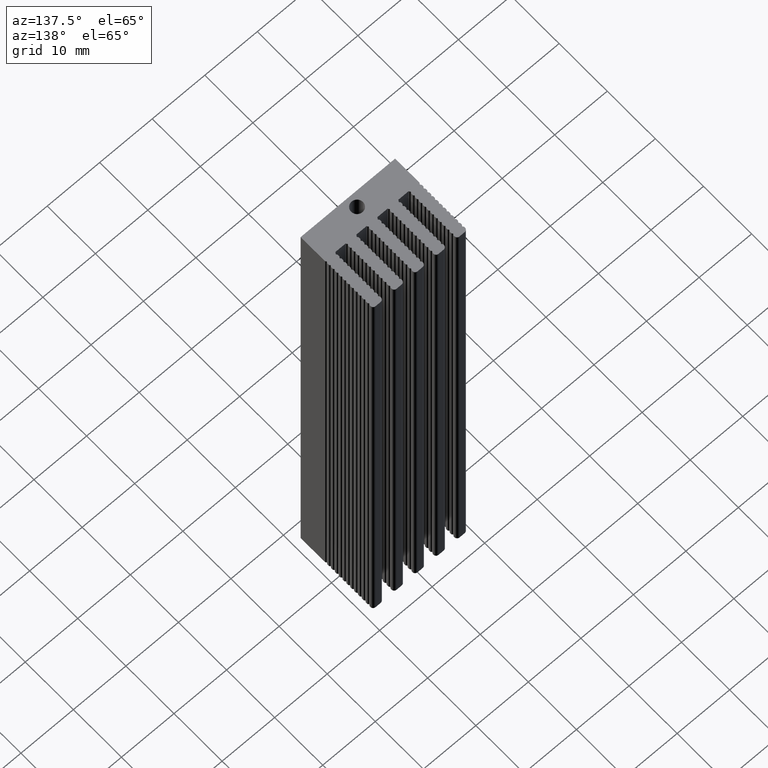
[diagram: clean part render]
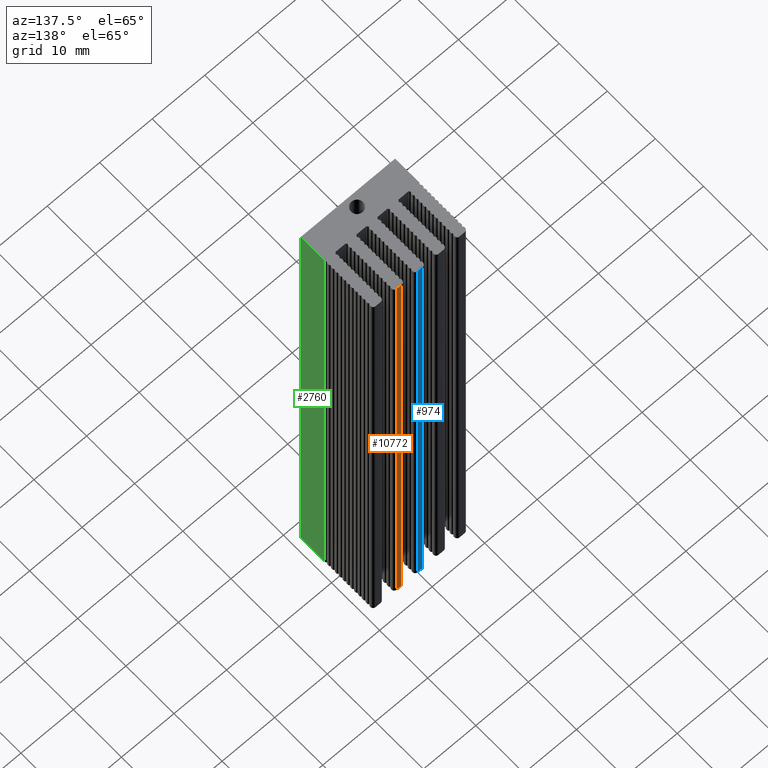
[diagram: same view with three faces highlighted in distinct colors, each labeled with its STEP entity id]
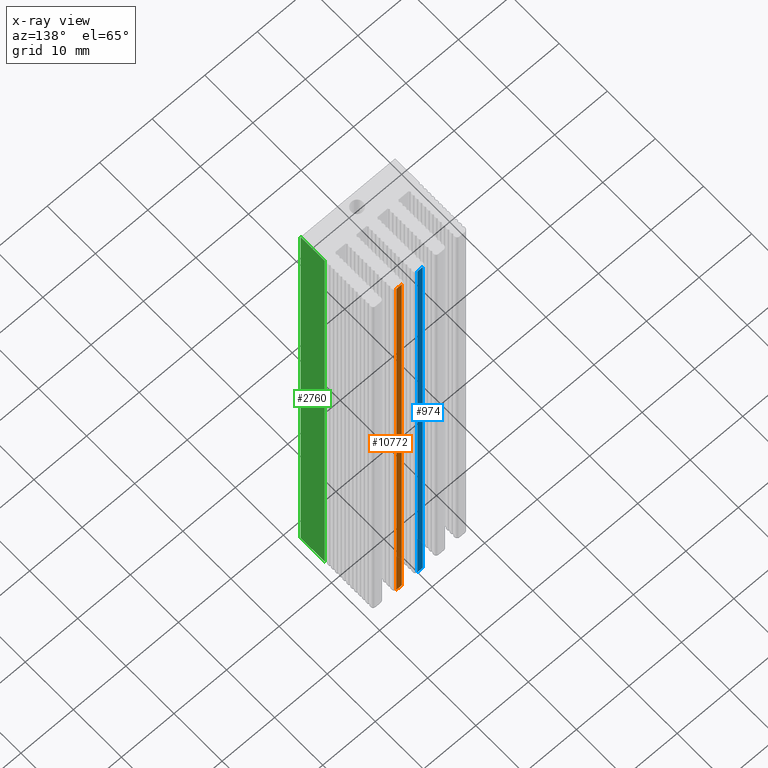
[diagram: x-ray of the same camera — body ghosted, the three highlighted faces saturated]
A machine part, auxiliary view with three faces highlighted in distinct colors.
The next image is the same camera in x-ray (body ghosted, the three faces saturated) — at least one of them is partly hidden behind the body in this view.
Their STEP definitions:

[orange] entity #10772 — the highlighted planar face has unit normal (0, -1, 0).
#322 = VECTOR ( 'NONE', #18754, 1000.000000000000000 ) ;
#606 = CARTESIAN_POINT ( 'NONE',  ( 4.500000000001180389, 7.500000000000958345, -50.00000000000000000 ) ) ;
#713 = VECTOR ( 'NONE', #3678, 1000.000000000000000 ) ;
#3678 = DIRECTION ( 'NONE',  ( -0.0000000000000000000, -0.0000000000000000000, -1.000000000000000000 ) ) ;
#3825 = CARTESIAN_POINT ( 'NONE',  ( 3.500000000000957012, 7.500000000000958345, -50.00000000000000000 ) ) ;
#3827 = CARTESIAN_POINT ( 'NONE',  ( 4.500000000001180389, 7.500000000000958345, 50.00000000000000000 ) ) ;
#3992 = LINE ( 'NONE', #3827, #8100 ) ;
#4278 = LINE ( 'NONE', #5219, #713 ) ;
#4364 = LINE ( 'NONE', #15716, #322 ) ;
#5183 = CARTESIAN_POINT ( 'NONE',  ( 0.0000000000000000000, 7.500000000000958345, -50.00000000000000000 ) ) ;
#5219 = CARTESIAN_POINT ( 'NONE',  ( 3.500000000000957012, 7.500000000000958345, 50.00000000000000000 ) ) ;
#6528 = VERTEX_POINT ( 'NONE', #13953 ) ;
#6869 = DIRECTION ( 'NONE',  ( 0.0000000000000000000, -1.000000000000000000, 0.0000000000000000000 ) ) ;
#7524 = ORIENTED_EDGE ( 'NONE', *, *, #14876, .F. ) ;
#7569 = CARTESIAN_POINT ( 'NONE',  ( 3.500000000000957012, 7.500000000000958345, 50.00000000000000000 ) ) ;
#8100 = VECTOR ( 'NONE', #14555, 1000.000000000000000 ) ;
#8883 = EDGE_CURVE ( 'NONE', #6528, #18887, #4364, .T. ) ;
#9805 = AXIS2_PLACEMENT_3D ( 'NONE', #12870, #6869, #17577 ) ;
#10232 = EDGE_CURVE ( 'NONE', #15403, #10788, #15570, .T. ) ;
#10521 = FACE_OUTER_BOUND ( 'NONE', #18909, .T. ) ;
#10772 = ADVANCED_FACE ( 'NONE', ( #10521 ), #11373, .F. ) ;
#10788 = VERTEX_POINT ( 'NONE', #3825 ) ;
#11373 = PLANE ( 'NONE',  #9805 ) ;
#11469 = VECTOR ( 'NONE', #19007, 1000.000000000000000 ) ;
#11569 = ORIENTED_EDGE ( 'NONE', *, *, #8883, .F. ) ;
#12870 = CARTESIAN_POINT ( 'NONE',  ( 0.0000000000000000000, 7.500000000000958345, 50.00000000000000000 ) ) ;
#13953 = CARTESIAN_POINT ( 'NONE',  ( 4.500000000001180389, 7.500000000000958345, 50.00000000000000000 ) ) ;
#14075 = ORIENTED_EDGE ( 'NONE', *, *, #10232, .T. ) ;
#14555 = DIRECTION ( 'NONE',  ( -0.0000000000000000000, -0.0000000000000000000, -1.000000000000000000 ) ) ;
#14876 = EDGE_CURVE ( 'NONE', #18887, #10788, #4278, .T. ) ;
#15403 = VERTEX_POINT ( 'NONE', #606 ) ;
#15570 = LINE ( 'NONE', #5183, #11469 ) ;
#15716 = CARTESIAN_POINT ( 'NONE',  ( 0.0000000000000000000, 7.500000000000958345, 50.00000000000000000 ) ) ;
#16034 = EDGE_CURVE ( 'NONE', #6528, #15403, #3992, .T. ) ;
#16307 = ORIENTED_EDGE ( 'NONE', *, *, #16034, .T. ) ;
#17577 = DIRECTION ( 'NONE',  ( 0.0000000000000000000, -0.0000000000000000000, -1.000000000000000000 ) ) ;
#18754 = DIRECTION ( 'NONE',  ( -1.000000000000000000, 0.0000000000000000000, 0.0000000000000000000 ) ) ;
#18887 = VERTEX_POINT ( 'NONE', #7569 ) ;
#18909 = EDGE_LOOP ( 'NONE', ( #14075, #7524, #11569, #16307 ) ) ;
#19007 = DIRECTION ( 'NONE',  ( -1.000000000000000000, 0.0000000000000000000, 0.0000000000000000000 ) ) ;

[blue] entity #974 — the highlighted planar face has unit normal (0, -1, 0).
#935 = CARTESIAN_POINT ( 'NONE',  ( 0.5000000000011440848, 7.499999999999947597, 50.00000000000000000 ) ) ;
#974 = ADVANCED_FACE ( 'NONE', ( #8828 ), #18664, .F. ) ;
#1820 = ORIENTED_EDGE ( 'NONE', *, *, #11745, .F. ) ;
#2013 = CARTESIAN_POINT ( 'NONE',  ( 0.0000000000000000000, 7.499999999999947597, 50.00000000000000000 ) ) ;
#2134 = VERTEX_POINT ( 'NONE', #13536 ) ;
#2660 = CARTESIAN_POINT ( 'NONE',  ( -0.4999999999988568034, 7.499999999999947597, 50.00000000000000000 ) ) ;
#4123 = VECTOR ( 'NONE', #7565, 1000.000000000000000 ) ;
#4159 = AXIS2_PLACEMENT_3D ( 'NONE', #4711, #9282, #11988 ) ;
#4711 = CARTESIAN_POINT ( 'NONE',  ( 0.0000000000000000000, 7.499999999999947597, 50.00000000000000000 ) ) ;
#5053 = DIRECTION ( 'NONE',  ( -1.000000000000000000, 0.0000000000000000000, 0.0000000000000000000 ) ) ;
#5252 = VECTOR ( 'NONE', #17996, 1000.000000000000000 ) ;
#5451 = LINE ( 'NONE', #2013, #13097 ) ;
#5686 = ORIENTED_EDGE ( 'NONE', *, *, #7648, .F. ) ;
#6518 = DIRECTION ( 'NONE',  ( -1.000000000000000000, 0.0000000000000000000, 0.0000000000000000000 ) ) ;
#6617 = ORIENTED_EDGE ( 'NONE', *, *, #14484, .T. ) ;
#7543 = VERTEX_POINT ( 'NONE', #2660 ) ;
#7565 = DIRECTION ( 'NONE',  ( -0.0000000000000000000, -0.0000000000000000000, -1.000000000000000000 ) ) ;
#7625 = ORIENTED_EDGE ( 'NONE', *, *, #11187, .T. ) ;
#7648 = EDGE_CURVE ( 'NONE', #7543, #2134, #8226, .T. ) ;
#7924 = LINE ( 'NONE', #11791, #5252 ) ;
#8226 = LINE ( 'NONE', #13645, #4123 ) ;
#8828 = FACE_OUTER_BOUND ( 'NONE', #16033, .T. ) ;
#9282 = DIRECTION ( 'NONE',  ( 0.0000000000000000000, -1.000000000000000000, 0.0000000000000000000 ) ) ;
#10968 = VECTOR ( 'NONE', #6518, 1000.000000000000000 ) ;
#11187 = EDGE_CURVE ( 'NONE', #16661, #2134, #15536, .T. ) ;
#11745 = EDGE_CURVE ( 'NONE', #18704, #7543, #5451, .T. ) ;
#11791 = CARTESIAN_POINT ( 'NONE',  ( 0.5000000000011440848, 7.499999999999947597, 50.00000000000000000 ) ) ;
#11988 = DIRECTION ( 'NONE',  ( 0.0000000000000000000, -0.0000000000000000000, -1.000000000000000000 ) ) ;
#13097 = VECTOR ( 'NONE', #5053, 1000.000000000000000 ) ;
#13401 = CARTESIAN_POINT ( 'NONE',  ( 0.5000000000011440848, 7.499999999999947597, -50.00000000000000000 ) ) ;
#13536 = CARTESIAN_POINT ( 'NONE',  ( -0.4999999999988568034, 7.499999999999947597, -50.00000000000000000 ) ) ;
#13645 = CARTESIAN_POINT ( 'NONE',  ( -0.4999999999988568034, 7.499999999999947597, 50.00000000000000000 ) ) ;
#14134 = CARTESIAN_POINT ( 'NONE',  ( 0.0000000000000000000, 7.499999999999947597, -50.00000000000000000 ) ) ;
#14484 = EDGE_CURVE ( 'NONE', #18704, #16661, #7924, .T. ) ;
#15536 = LINE ( 'NONE', #14134, #10968 ) ;
#16033 = EDGE_LOOP ( 'NONE', ( #7625, #5686, #1820, #6617 ) ) ;
#16661 = VERTEX_POINT ( 'NONE', #13401 ) ;
#17996 = DIRECTION ( 'NONE',  ( -0.0000000000000000000, -0.0000000000000000000, -1.000000000000000000 ) ) ;
#18664 = PLANE ( 'NONE',  #4159 ) ;
#18704 = VERTEX_POINT ( 'NONE', #935 ) ;

[green] entity #2760 — the highlighted planar face has unit normal (-1, 0, 0).
#116 = FACE_OUTER_BOUND ( 'NONE', #6135, .T. ) ;
#163 = ORIENTED_EDGE ( 'NONE', *, *, #9611, .F. ) ;
#432 = DIRECTION ( 'NONE',  ( -0.0000000000000000000, -0.0000000000000000000, -1.000000000000000000 ) ) ;
#555 = DIRECTION ( 'NONE',  ( -0.0000000000000000000, -0.0000000000000000000, -1.000000000000000000 ) ) ;
#1700 = DIRECTION ( 'NONE',  ( -1.000000000000000000, 0.0000000000000000000, 0.0000000000000000000 ) ) ;
#2192 = VECTOR ( 'NONE', #555, 1000.000000000000000 ) ;
#2760 = ADVANCED_FACE ( 'NONE', ( #116 ), #9184, .F. ) ;
#3026 = CARTESIAN_POINT ( 'NONE',  ( 9.000000000000119016, 0.0000000000000000000, -50.00000000000000000 ) ) ;
#3381 = LINE ( 'NONE', #18802, #19201 ) ;
#3610 = VECTOR ( 'NONE', #432, 1000.000000000000000 ) ;
#4088 = LINE ( 'NONE', #12642, #3610 ) ;
#4405 = EDGE_CURVE ( 'NONE', #15956, #12669, #3381, .T. ) ;
#4539 = DIRECTION ( 'NONE',  ( 0.0000000000000000000, 1.000000000000000000, -0.0000000000000000000 ) ) ;
#6135 = EDGE_LOOP ( 'NONE', ( #19446, #163, #16967, #12862 ) ) ;
#6259 = LINE ( 'NONE', #11219, #2192 ) ;
#7825 = LINE ( 'NONE', #3026, #8306 ) ;
#8306 = VECTOR ( 'NONE', #4539, 1000.000000000000000 ) ;
#9044 = CARTESIAN_POINT ( 'NONE',  ( 9.000000000000119016, 0.0000000000000000000, 50.00000000000000000 ) ) ;
#9184 = PLANE ( 'NONE',  #12774 ) ;
#9587 = VERTEX_POINT ( 'NONE', #15659 ) ;
#9611 = EDGE_CURVE ( 'NONE', #12669, #9587, #4088, .T. ) ;
#9667 = EDGE_CURVE ( 'NONE', #15956, #17210, #6259, .T. ) ;
#10011 = DIRECTION ( 'NONE',  ( 0.0000000000000000000, 0.0000000000000000000, 1.000000000000000000 ) ) ;
#10590 = CARTESIAN_POINT ( 'NONE',  ( 9.000000000002497558, -2.499999999999014122, 50.00000000000000000 ) ) ;
#11219 = CARTESIAN_POINT ( 'NONE',  ( 9.000000000000119016, -7.500000000000007105, 50.00000000000000000 ) ) ;
#12642 = CARTESIAN_POINT ( 'NONE',  ( 9.000000000002497558, -2.499999999999014122, 50.00000000000000000 ) ) ;
#12669 = VERTEX_POINT ( 'NONE', #10590 ) ;
#12674 = DIRECTION ( 'NONE',  ( 0.0000000000000000000, 1.000000000000000000, -0.0000000000000000000 ) ) ;
#12774 = AXIS2_PLACEMENT_3D ( 'NONE', #9044, #1700, #10011 ) ;
#12862 = ORIENTED_EDGE ( 'NONE', *, *, #9667, .T. ) ;
#15317 = CARTESIAN_POINT ( 'NONE',  ( 9.000000000000119016, -7.500000000000007105, -50.00000000000000000 ) ) ;
#15659 = CARTESIAN_POINT ( 'NONE',  ( 9.000000000002497558, -2.499999999999014122, -50.00000000000000000 ) ) ;
#15956 = VERTEX_POINT ( 'NONE', #18872 ) ;
#16791 = EDGE_CURVE ( 'NONE', #17210, #9587, #7825, .T. ) ;
#16967 = ORIENTED_EDGE ( 'NONE', *, *, #4405, .F. ) ;
#17210 = VERTEX_POINT ( 'NONE', #15317 ) ;
#18802 = CARTESIAN_POINT ( 'NONE',  ( 9.000000000000119016, 0.0000000000000000000, 50.00000000000000000 ) ) ;
#18872 = CARTESIAN_POINT ( 'NONE',  ( 9.000000000000119016, -7.500000000000007105, 50.00000000000000000 ) ) ;
#19201 = VECTOR ( 'NONE', #12674, 1000.000000000000000 ) ;
#19446 = ORIENTED_EDGE ( 'NONE', *, *, #16791, .T. ) ;